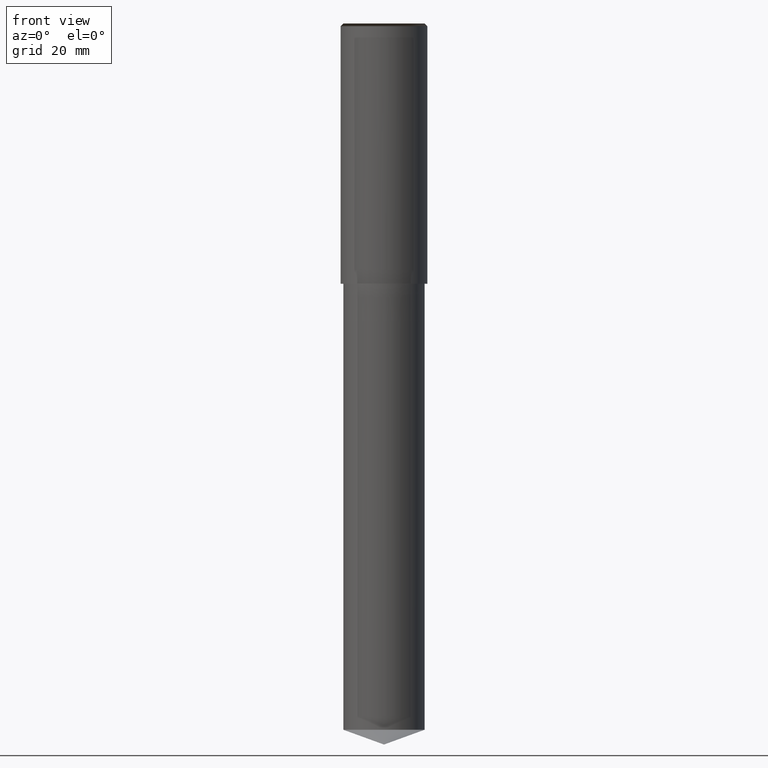
[diagram: clean part render]
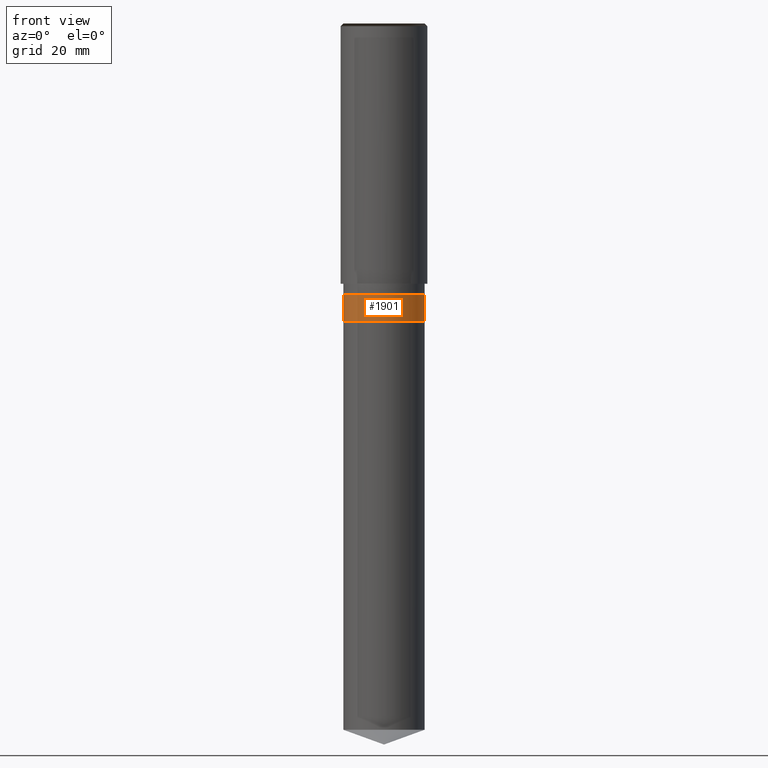
[diagram: same view with one face highlighted and labeled with its STEP entity id]
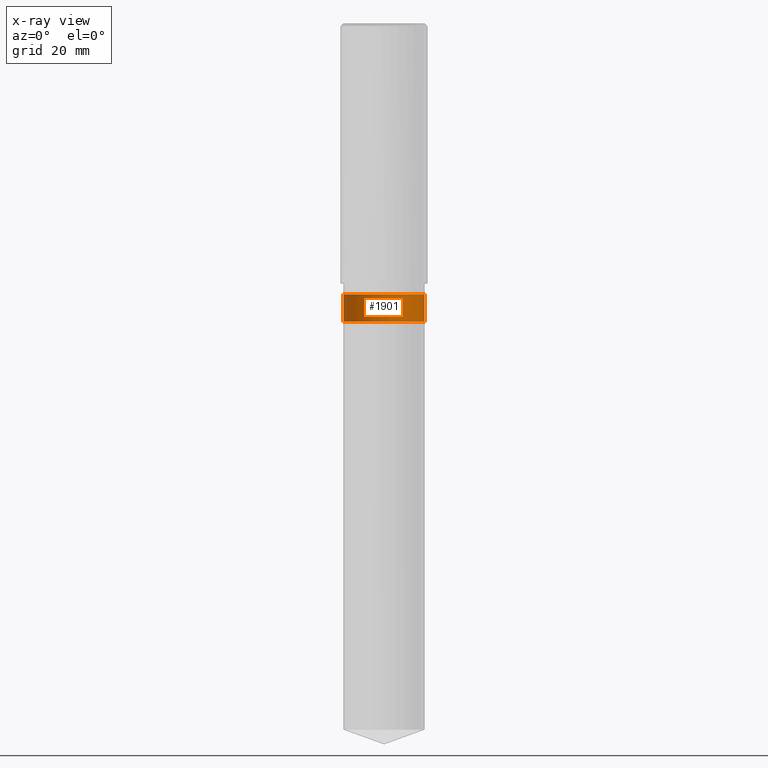
[diagram: x-ray of the same camera — body ghosted, the highlighted face saturated]
A machine part, front view. The second image highlights one B-rep face of the part: STEP entity #1901.
The next image is the same camera in x-ray: the body ghosted, the highlighted face saturated — about 0% of this face is hidden behind the body in this view.
In plain terms, the highlighted face is a freeform B-spline surface patch.
Its self-contained STEP definition (entity closure, byte-faithful):
#1568=CARTESIAN_POINT('',(7.5,0.0,-7.0));
#1572=CARTESIAN_POINT('',(-7.5,0.0,-7.0));
#1577=CARTESIAN_POINT('',(-7.5,-7.5,-7.0));
#1578=CARTESIAN_POINT('',(0.0,-7.5,-7.0));
#1579=CARTESIAN_POINT('',(7.5,-7.5,-7.0));
#1580=CARTESIAN_POINT('',(7.5,0.0,-2.0));
#1584=CARTESIAN_POINT('',(-7.5,0.0,-2.0));
#1606=CARTESIAN_POINT('',(-7.5,-7.5,-2.0));
#1607=CARTESIAN_POINT('',(0.0,-7.5,-2.0));
#1608=CARTESIAN_POINT('',(7.5,-7.5,-2.0));
#1882=(
BOUNDED_SURFACE()
B_SPLINE_SURFACE(1,2,(
(#1572,#1577,#1578,#1579,#1568),
(#1584,#1606,#1607,#1608,#1580)
), .UNSPECIFIED.,.F.,.F.,.F.)
B_SPLINE_SURFACE_WITH_KNOTS((2,2),(3,2,3),(
0.0,1.0),(
0.0,0.5,1.0), .UNSPECIFIED.)
GEOMETRIC_REPRESENTATION_ITEM()
RATIONAL_B_SPLINE_SURFACE(((1.0,0.707106781187,1.0,0.707106781187,1.0),
(1.0,0.707106781187,1.0,0.707106781187,1.0)
))
REPRESENTATION_ITEM('')
SURFACE()
);
#1883=(
BOUNDED_CURVE()
B_SPLINE_CURVE(2,(#1568,#1579,#1578,#1577,#1572),.UNSPECIFIED.,.F.,.F.)
B_SPLINE_CURVE_WITH_KNOTS((3,2,3),
(0.0,0.5,1.0),.UNSPECIFIED.)
CURVE()
GEOMETRIC_REPRESENTATION_ITEM()
RATIONAL_B_SPLINE_CURVE((1.0,0.707106781187,1.0,0.707106781187,1.0))
REPRESENTATION_ITEM('')
);
#1884=(
BOUNDED_CURVE()
B_SPLINE_CURVE(1,(#1572,#1584),.UNSPECIFIED.,.F.,.F.)
B_SPLINE_CURVE_WITH_KNOTS((2,2),
(0.0,1.0),.UNSPECIFIED.)
CURVE()
GEOMETRIC_REPRESENTATION_ITEM()
RATIONAL_B_SPLINE_CURVE((1.0,1.0))
REPRESENTATION_ITEM('')
);
#1885=(
BOUNDED_CURVE()
B_SPLINE_CURVE(2,(#1584,#1606,#1607,#1608,#1580),.UNSPECIFIED.,.F.,.F.)
B_SPLINE_CURVE_WITH_KNOTS((3,2,3),
(0.0,0.5,1.0),.UNSPECIFIED.)
CURVE()
GEOMETRIC_REPRESENTATION_ITEM()
RATIONAL_B_SPLINE_CURVE((1.0,0.707106781187,1.0,0.707106781187,1.0))
REPRESENTATION_ITEM('')
);
#1886=(
BOUNDED_CURVE()
B_SPLINE_CURVE(1,(#1580,#1568),.UNSPECIFIED.,.F.,.F.)
B_SPLINE_CURVE_WITH_KNOTS((2,2),
(0.0,1.0),.UNSPECIFIED.)
CURVE()
GEOMETRIC_REPRESENTATION_ITEM()
RATIONAL_B_SPLINE_CURVE((1.0,1.0))
REPRESENTATION_ITEM('')
);
#1887=VERTEX_POINT('',#1568);
#1888=VERTEX_POINT('',#1572);
#1889=VERTEX_POINT('',#1580);
#1890=VERTEX_POINT('',#1584);
#1891=EDGE_CURVE('',#1887,#1888,#1883,.T.);
#1892=EDGE_CURVE('',#1888,#1890,#1884,.T.);
#1893=EDGE_CURVE('',#1890,#1889,#1885,.T.);
#1894=EDGE_CURVE('',#1889,#1887,#1886,.T.);
#1895=ORIENTED_EDGE('',*,*,#1891,.T.);
#1896=ORIENTED_EDGE('',*,*,#1892,.T.);
#1897=ORIENTED_EDGE('',*,*,#1893,.T.);
#1898=ORIENTED_EDGE('',*,*,#1894,.T.);
#1899=EDGE_LOOP('',(#1895,#1896,#1897,#1898));
#1900=FACE_OUTER_BOUND('',#1899,.T.);
#1901=ADVANCED_FACE('',(#1900),#1882,.T.);